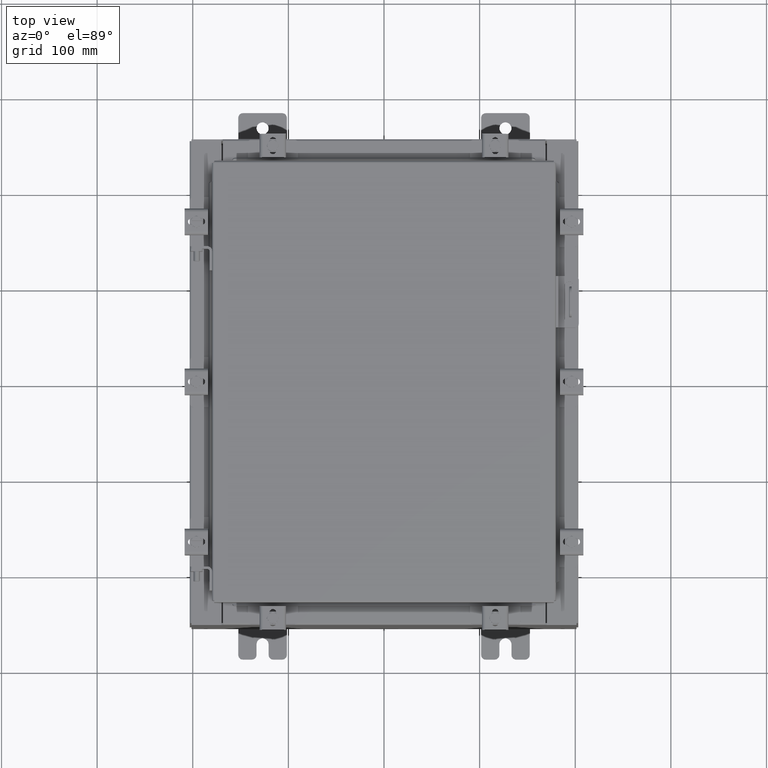
[diagram: clean part render]
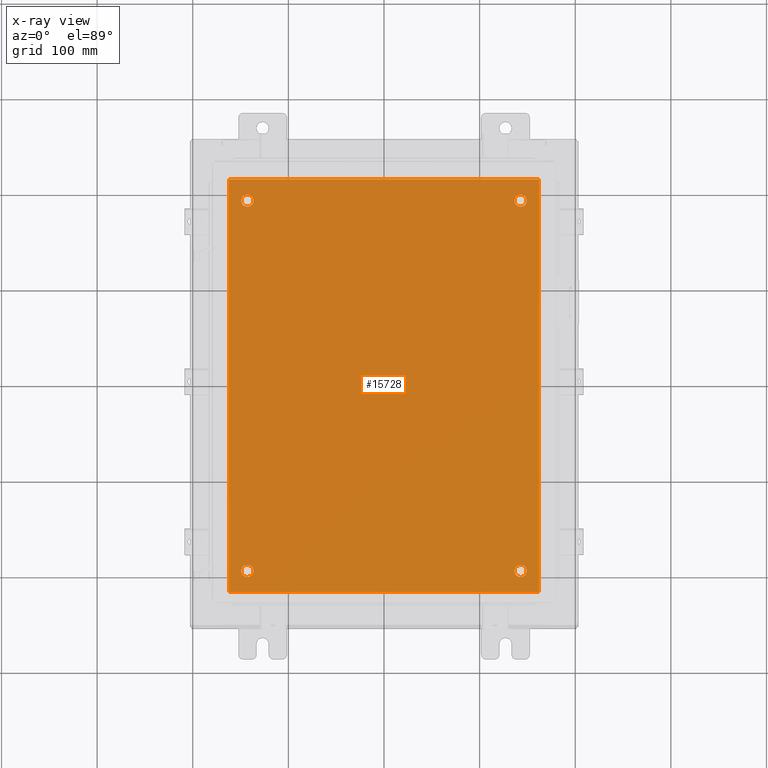
[diagram: x-ray — body ghosted, one internal face saturated and labeled with its STEP entity id]
A machine part, top view, then the same camera in x-ray: the body is ghosted and one INTERNAL B-rep face — a face not visible from any outside direction — is saturated and labeled: STEP entity #15728.
In plain terms, the highlighted planar face has unit normal (0, 0, -1).
Its self-contained STEP definition (entity closure, byte-faithful):
#59 = DIRECTION ( 'NONE',  ( -1.000000000000000000, 0.0000000000000000000, 0.0000000000000000000 ) ) ;
#241 = AXIS2_PLACEMENT_3D ( 'NONE', #14198, #3766, #15953 ) ;
#394 = ORIENTED_EDGE ( 'NONE', *, *, #12578, .T. ) ;
#734 = VECTOR ( 'NONE', #17714, 39.37007874015748100 ) ;
#990 = EDGE_CURVE ( 'NONE', #21585, #4463, #11589, .T. ) ;
#1127 = CIRCLE ( 'NONE', #8561, 0.2499999999999998100 ) ;
#1179 = ORIENTED_EDGE ( 'NONE', *, *, #20309, .T. ) ;
#1408 = LINE ( 'NONE', #19470, #19383 ) ;
#1410 = ORIENTED_EDGE ( 'NONE', *, *, #21145, .F. ) ;
#1517 = ORIENTED_EDGE ( 'NONE', *, *, #18906, .T. ) ;
#2130 = EDGE_LOOP ( 'NONE', ( #394, #10206 ) ) ;
#2604 = VERTEX_POINT ( 'NONE', #18304 ) ;
#2726 = CARTESIAN_POINT ( 'NONE',  ( 5.874999999999999100, 7.625000000000002700, -0.1039999999999999800 ) ) ;
#2737 = VERTEX_POINT ( 'NONE', #16985 ) ;
#2807 = CARTESIAN_POINT ( 'NONE',  ( -6.499999999999998200, 8.500000000000000000, -0.1039999999999999800 ) ) ;
#3002 = EDGE_CURVE ( 'NONE', #20508, #2737, #1408, .T. ) ;
#3054 = CIRCLE ( 'NONE', #12218, 0.2499999999999987000 ) ;
#3125 = DIRECTION ( 'NONE',  ( -0.0000000000000000000, -0.0000000000000000000, 1.000000000000000000 ) ) ;
#3163 = VERTEX_POINT ( 'NONE', #14180 ) ;
#3346 = VERTEX_POINT ( 'NONE', #18157 ) ;
#3496 = EDGE_CURVE ( 'NONE', #2604, #3163, #8078, .T. ) ;
#3658 = EDGE_CURVE ( 'NONE', #2737, #17888, #19791, .T. ) ;
#3766 = DIRECTION ( 'NONE',  ( -0.0000000000000000000, -0.0000000000000000000, 1.000000000000000000 ) ) ;
#4050 = FACE_BOUND ( 'NONE', #2130, .T. ) ;
#4463 = VERTEX_POINT ( 'NONE', #16423 ) ;
#4606 = FACE_BOUND ( 'NONE', #13793, .T. ) ;
#5143 = AXIS2_PLACEMENT_3D ( 'NONE', #21966, #21746, #20146 ) ;
#5721 = LINE ( 'NONE', #2807, #10925 ) ;
#5926 = CARTESIAN_POINT ( 'NONE',  ( -6.382999999999998200, 8.500000000000000000, -0.1039999999999998100 ) ) ;
#6938 = PLANE ( 'NONE',  #16328 ) ;
#6987 = ORIENTED_EDGE ( 'NONE', *, *, #21504, .T. ) ;
#7253 = CARTESIAN_POINT ( 'NONE',  ( 6.383000000000002700, -8.499999999999998200, -0.1039999999999998100 ) ) ;
#7763 = ORIENTED_EDGE ( 'NONE', *, *, #11537, .T. ) ;
#7821 = VERTEX_POINT ( 'NONE', #21717 ) ;
#8078 = CIRCLE ( 'NONE', #15651, 0.2499999999999998100 ) ;
#8144 = DIRECTION ( 'NONE',  ( -0.0000000000000000000, -0.0000000000000000000, 1.000000000000000000 ) ) ;
#8561 = AXIS2_PLACEMENT_3D ( 'NONE', #9808, #21989, #11575 ) ;
#8755 = LINE ( 'NONE', #5926, #22127 ) ;
#8918 = CARTESIAN_POINT ( 'NONE',  ( -5.625000000000000000, 7.625000000000001800, -0.1039999999999999800 ) ) ;
#8954 = CARTESIAN_POINT ( 'NONE',  ( 5.375000000000001800, 7.625000000000002700, -0.1039999999999999800 ) ) ;
#9073 = CARTESIAN_POINT ( 'NONE',  ( 5.625000000000000000, 7.625000000000002700, -0.1039999999999999800 ) ) ;
#9425 = AXIS2_PLACEMENT_3D ( 'NONE', #13558, #3125, #15293 ) ;
#9448 = CIRCLE ( 'NONE', #9425, 0.2499999999999987000 ) ;
#9479 = ORIENTED_EDGE ( 'NONE', *, *, #3496, .T. ) ;
#9808 = CARTESIAN_POINT ( 'NONE',  ( -5.625000000000000000, -7.625000000000001800, -0.1039999999999999800 ) ) ;
#10206 = ORIENTED_EDGE ( 'NONE', *, *, #990, .T. ) ;
#10434 = DIRECTION ( 'NONE',  ( -0.0000000000000000000, -0.0000000000000000000, 1.000000000000000000 ) ) ;
#10452 = DIRECTION ( 'NONE',  ( -1.000000000000000000, 0.0000000000000000000, -0.0000000000000000000 ) ) ;
#10485 = EDGE_CURVE ( 'NONE', #19086, #20508, #8755, .T. ) ;
#10692 = DIRECTION ( 'NONE',  ( -1.000000000000000000, 0.0000000000000000000, 0.0000000000000000000 ) ) ;
#10842 = DIRECTION ( 'NONE',  ( -1.000000000000000000, 0.0000000000000000000, 0.0000000000000000000 ) ) ;
#10925 = VECTOR ( 'NONE', #14906, 39.37007874015748100 ) ;
#11429 = ORIENTED_EDGE ( 'NONE', *, *, #3002, .F. ) ;
#11537 = EDGE_CURVE ( 'NONE', #3346, #7821, #19292, .T. ) ;
#11575 = DIRECTION ( 'NONE',  ( -1.000000000000000000, 0.0000000000000000000, 0.0000000000000000000 ) ) ;
#11589 = CIRCLE ( 'NONE', #5143, 0.2499999999999987000 ) ;
#11664 = AXIS2_PLACEMENT_3D ( 'NONE', #8918, #21136, #10692 ) ;
#11672 = CARTESIAN_POINT ( 'NONE',  ( -6.382999999999998200, -8.499999999999998200, -0.1039999999999998100 ) ) ;
#12218 = AXIS2_PLACEMENT_3D ( 'NONE', #9073, #21285, #10842 ) ;
#12578 = EDGE_CURVE ( 'NONE', #4463, #21585, #9448, .T. ) ;
#12633 = CARTESIAN_POINT ( 'NONE',  ( 6.383000000000000900, 8.500000000000000000, -0.1039999999999999800 ) ) ;
#13115 = CIRCLE ( 'NONE', #11664, 0.2499999999999998100 ) ;
#13346 = FACE_BOUND ( 'NONE', #18348, .T. ) ;
#13558 = CARTESIAN_POINT ( 'NONE',  ( 5.625000000000004400, -7.625000000000000900, -0.1039999999999999800 ) ) ;
#13793 = EDGE_LOOP ( 'NONE', ( #1179, #1517 ) ) ;
#14180 = CARTESIAN_POINT ( 'NONE',  ( -5.875000000000000000, -7.625000000000001800, -0.1039999999999999800 ) ) ;
#14198 = CARTESIAN_POINT ( 'NONE',  ( -5.625000000000000000, 7.625000000000001800, -0.1039999999999999800 ) ) ;
#14619 = ORIENTED_EDGE ( 'NONE', *, *, #10485, .F. ) ;
#14724 = EDGE_LOOP ( 'NONE', ( #7763, #6987 ) ) ;
#14906 = DIRECTION ( 'NONE',  ( -1.000000000000000000, -0.0000000000000000000, -0.0000000000000000000 ) ) ;
#15293 = DIRECTION ( 'NONE',  ( -1.000000000000000000, 0.0000000000000000000, 0.0000000000000000000 ) ) ;
#15316 = ORIENTED_EDGE ( 'NONE', *, *, #21151, .T. ) ;
#15651 = AXIS2_PLACEMENT_3D ( 'NONE', #18610, #8144, #20359 ) ;
#15728 = ADVANCED_FACE ( 'NONE', ( #13346, #4050, #4606, #22051, #17406 ), #6938, .T. ) ;
#15953 = DIRECTION ( 'NONE',  ( -1.000000000000000000, 0.0000000000000000000, 0.0000000000000000000 ) ) ;
#16082 = CARTESIAN_POINT ( 'NONE',  ( -6.382999999999998200, 8.500000000000000000, -0.1039999999999998100 ) ) ;
#16328 = AXIS2_PLACEMENT_3D ( 'NONE', #19150, #20896, #10452 ) ;
#16423 = CARTESIAN_POINT ( 'NONE',  ( 5.875000000000003600, -7.625000000000000900, -0.1039999999999999800 ) ) ;
#16965 = VERTEX_POINT ( 'NONE', #8954 ) ;
#16985 = CARTESIAN_POINT ( 'NONE',  ( 6.383000000000000900, -8.499999999999998200, -0.1039999999999999800 ) ) ;
#17406 = FACE_OUTER_BOUND ( 'NONE', #17546, .T. ) ;
#17546 = EDGE_LOOP ( 'NONE', ( #11429, #14619, #1410, #17707 ) ) ;
#17707 = ORIENTED_EDGE ( 'NONE', *, *, #3658, .F. ) ;
#17714 = DIRECTION ( 'NONE',  ( 0.0000000000000000000, 1.000000000000000000, 0.0000000000000000000 ) ) ;
#17717 = DIRECTION ( 'NONE',  ( 1.000000000000000000, 0.0000000000000000000, 0.0000000000000000000 ) ) ;
#17888 = VERTEX_POINT ( 'NONE', #12633 ) ;
#17895 = AXIS2_PLACEMENT_3D ( 'NONE', #20883, #10434, #59 ) ;
#18157 = CARTESIAN_POINT ( 'NONE',  ( -5.375000000000000900, 7.625000000000001800, -0.1039999999999999800 ) ) ;
#18220 = DIRECTION ( 'NONE',  ( 0.0000000000000000000, -1.000000000000000000, 0.0000000000000000000 ) ) ;
#18304 = CARTESIAN_POINT ( 'NONE',  ( -5.375000000000000900, -7.625000000000001800, -0.1039999999999999800 ) ) ;
#18348 = EDGE_LOOP ( 'NONE', ( #9479, #15316 ) ) ;
#18610 = CARTESIAN_POINT ( 'NONE',  ( -5.625000000000000000, -7.625000000000001800, -0.1039999999999999800 ) ) ;
#18906 = EDGE_CURVE ( 'NONE', #16965, #21137, #19724, .T. ) ;
#19086 = VERTEX_POINT ( 'NONE', #16082 ) ;
#19150 = CARTESIAN_POINT ( 'NONE',  ( 0.0000000000000000000, 0.0000000000000000000, -0.1039999999999999800 ) ) ;
#19292 = CIRCLE ( 'NONE', #241, 0.2499999999999998100 ) ;
#19383 = VECTOR ( 'NONE', #17717, 39.37007874015748100 ) ;
#19470 = CARTESIAN_POINT ( 'NONE',  ( -6.499999999999998200, -8.499999999999998200, -0.1039999999999999800 ) ) ;
#19724 = CIRCLE ( 'NONE', #17895, 0.2499999999999987000 ) ;
#19791 = LINE ( 'NONE', #7253, #734 ) ;
#20146 = DIRECTION ( 'NONE',  ( -1.000000000000000000, 0.0000000000000000000, 0.0000000000000000000 ) ) ;
#20309 = EDGE_CURVE ( 'NONE', #21137, #16965, #3054, .T. ) ;
#20359 = DIRECTION ( 'NONE',  ( -1.000000000000000000, 0.0000000000000000000, 0.0000000000000000000 ) ) ;
#20508 = VERTEX_POINT ( 'NONE', #11672 ) ;
#20883 = CARTESIAN_POINT ( 'NONE',  ( 5.625000000000000000, 7.625000000000002700, -0.1039999999999999800 ) ) ;
#20896 = DIRECTION ( 'NONE',  ( 0.0000000000000000000, 0.0000000000000000000, -1.000000000000000000 ) ) ;
#21136 = DIRECTION ( 'NONE',  ( -0.0000000000000000000, -0.0000000000000000000, 1.000000000000000000 ) ) ;
#21137 = VERTEX_POINT ( 'NONE', #2726 ) ;
#21145 = EDGE_CURVE ( 'NONE', #17888, #19086, #5721, .T. ) ;
#21151 = EDGE_CURVE ( 'NONE', #3163, #2604, #1127, .T. ) ;
#21207 = CARTESIAN_POINT ( 'NONE',  ( 5.375000000000006200, -7.625000000000000900, -0.1039999999999999800 ) ) ;
#21285 = DIRECTION ( 'NONE',  ( -0.0000000000000000000, -0.0000000000000000000, 1.000000000000000000 ) ) ;
#21504 = EDGE_CURVE ( 'NONE', #7821, #3346, #13115, .T. ) ;
#21585 = VERTEX_POINT ( 'NONE', #21207 ) ;
#21717 = CARTESIAN_POINT ( 'NONE',  ( -5.875000000000000000, 7.625000000000001800, -0.1039999999999999800 ) ) ;
#21746 = DIRECTION ( 'NONE',  ( -0.0000000000000000000, -0.0000000000000000000, 1.000000000000000000 ) ) ;
#21966 = CARTESIAN_POINT ( 'NONE',  ( 5.625000000000004400, -7.625000000000000900, -0.1039999999999999800 ) ) ;
#21989 = DIRECTION ( 'NONE',  ( -0.0000000000000000000, -0.0000000000000000000, 1.000000000000000000 ) ) ;
#22051 = FACE_BOUND ( 'NONE', #14724, .T. ) ;
#22127 = VECTOR ( 'NONE', #18220, 39.37007874015748100 ) ;